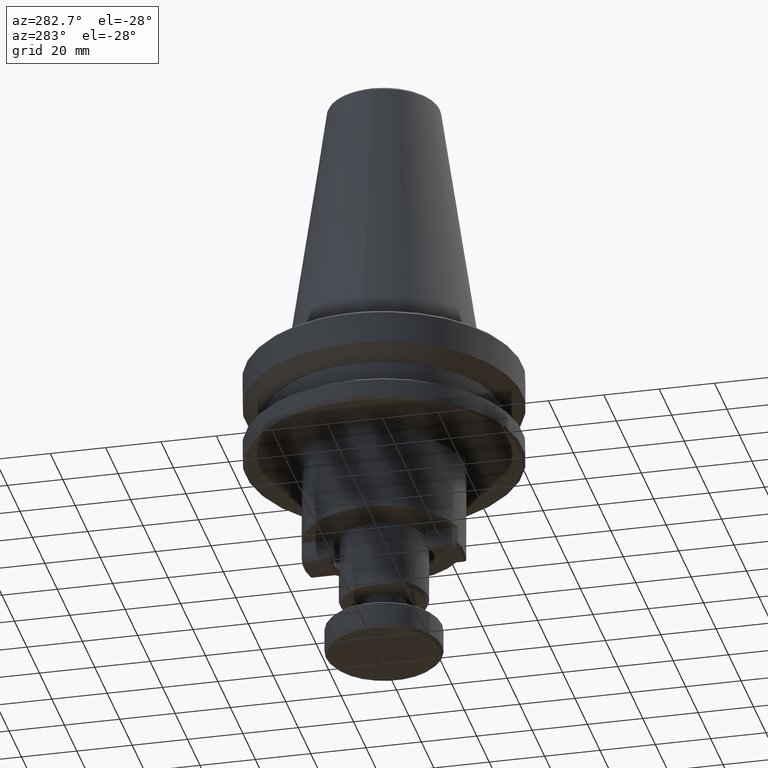
[diagram: clean part render]
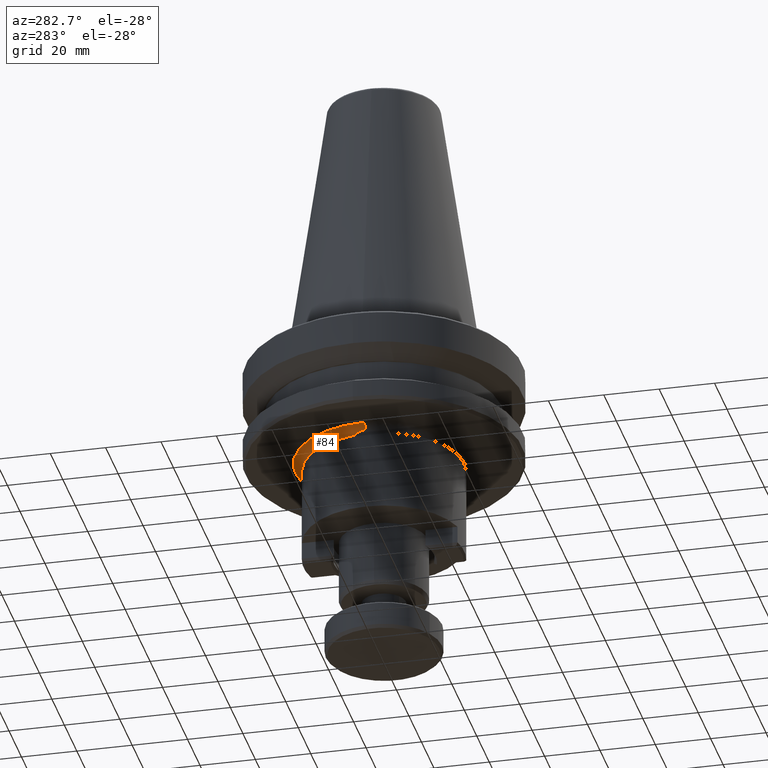
[diagram: same view with one face highlighted and labeled with its STEP entity id]
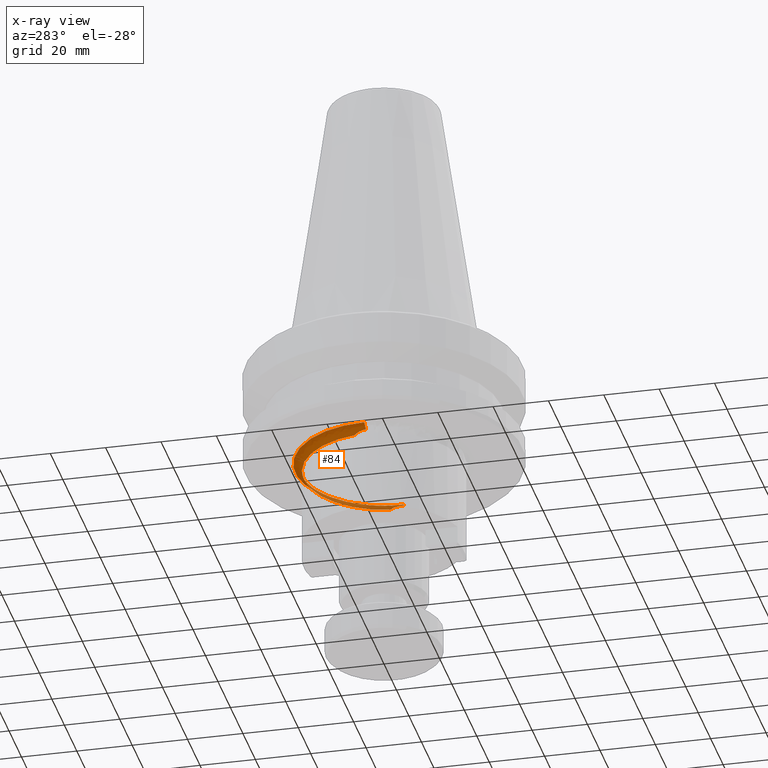
[diagram: x-ray of the same camera — body ghosted, the highlighted face saturated]
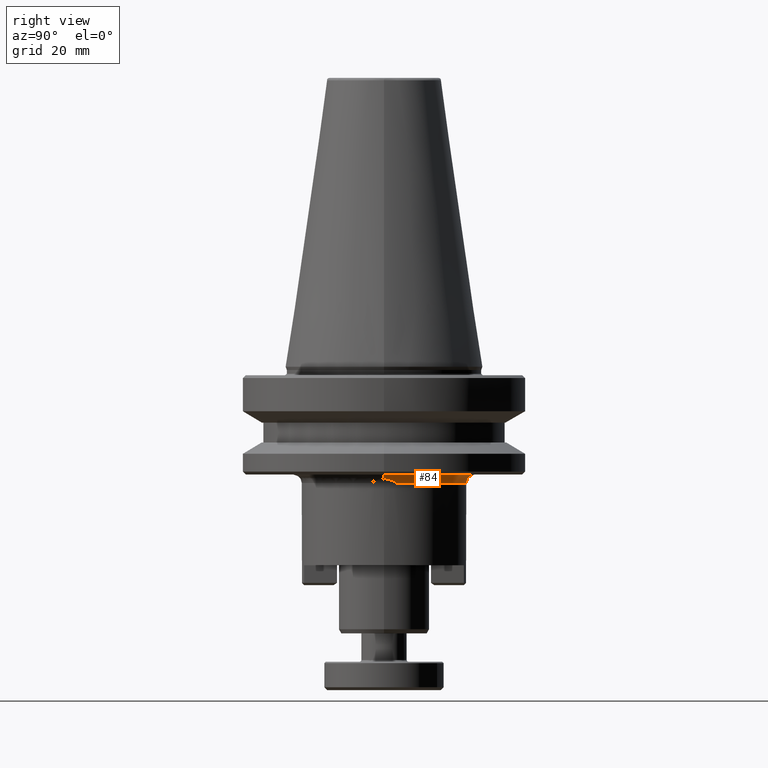
[diagram: same view with one face highlighted and labeled with its STEP entity id]
A machine part, auxiliary view. The second image highlights one B-rep face of the part: STEP entity #84.
The next image is the same camera in x-ray: the body ghosted, the highlighted face saturated — about 25% of this face is hidden behind the body in this view.
A second angle (right view) of the same face is appended — the face is thin or edge-on in the first view.
In plain terms, the highlighted face is a freeform B-spline surface patch.
Its self-contained STEP definition (entity closure, byte-faithful):
#65 = CARTESIAN_POINT ( 'NONE',  ( 29.37308693792537200, 0.7950259307638227700, -39.53439945254913100 ) ) ;
#84 = ADVANCED_FACE ( 'NONE', ( #1037 ), #342, .F. ) ;
#125 = ORIENTED_EDGE ( 'NONE', *, *, #1742, .F. ) ;
#126 = CARTESIAN_POINT ( 'NONE',  ( 29.27295225008198900, 1.562764795377848300, -39.66557073256570500 ) ) ;
#166 = CARTESIAN_POINT ( 'NONE',  ( -29.20160653221320900, 1.938896850791588200, -39.76280649701317300 ) ) ;
#244 = VERTEX_POINT ( 'NONE', #1927 ) ;
#263 = CARTESIAN_POINT ( 'NONE',  ( 30.93055105038361700, 0.0000000000000000000, -38.00000000060403900 ) ) ;
#342 =( BOUNDED_SURFACE ( )  B_SPLINE_SURFACE ( 3, 3, ( 
 ( #2304, #1856, #2701, #1745 ),
 ( #1761, #1816, #2589, #2180 ),
 ( #1201, #1610, #1801, #1909 ),
 ( #2657, #1949, #2121, #1861 ) ),
 .UNSPECIFIED., .F., .F., .F. ) 
 B_SPLINE_SURFACE_WITH_KNOTS ( ( 4, 4 ),
 ( 4, 4 ),
 ( 0.05789915400460531700, 0.9368585430000020400 ),
 ( 0.0000000000000000000, 1.000000000000000000 ),
 .UNSPECIFIED. ) 
 GEOMETRIC_REPRESENTATION_ITEM ( )  RATIONAL_B_SPLINE_SURFACE ( (
 ( 0.9599605786704300500, 0.3199868595568071100, 0.3199868595568071100, 0.9599605786704300500),
 ( 0.7698014946043482100, 0.2566004982014460400, 0.2566004982014460400, 0.7698014946043482100),
 ( 0.7686740691028690600, 0.2562246897009540800, 0.2562246897009540800, 0.7686740691028690600),
 ( 0.9565783021659940400, 0.3188594340553280200, 0.3188594340553280200, 0.9565783021659940400) ) ) 
 REPRESENTATION_ITEM ( '' )  SURFACE ( )  );
#408 = CARTESIAN_POINT ( 'NONE',  ( -29.96500746771830800, -1.151902097558945500E-007, -38.52471045805528100 ) ) ;
#409 = EDGE_CURVE ( 'NONE', #1400, #1647, #2175, .T. ) ;
#425 = VERTEX_POINT ( 'NONE', #1377 ) ;
#446 = CARTESIAN_POINT ( 'NONE',  ( -28.95551459557592700, 3.017730549902761800, -40.17220002150745000 ) ) ;
#455 = B_SPLINE_CURVE_WITH_KNOTS ( 'NONE', 3,
 ( #1643, #2905, #657, #2673, #2488, #1132, #126, #65, #1488, #1545 ),
 .UNSPECIFIED., .F., .F.,
 ( 4, 2, 2, 2, 4 ),
 ( 1.594428724920772600E-010, 0.001177310374208333600, 0.002354620588973794600, 0.003531930803739255200, 0.004709241018504715400 ),
 .UNSPECIFIED. ) ;
#500 = CARTESIAN_POINT ( 'NONE',  ( -30.93055105086838100, -1.189019114122236500E-007, -38.00000000060403900 ) ) ;
#541 = CARTESIAN_POINT ( 'NONE',  ( -31.99999999900000300, 63.99999999699999600, -38.00000000000000000 ) ) ;
#576 =( BOUNDED_CURVE ( )  B_SPLINE_CURVE ( 3, ( #838, #2444, #263, #1532 ),
 .UNSPECIFIED., .F., .T. ) 
 B_SPLINE_CURVE_WITH_KNOTS ( ( 4, 4 ),
 ( 0.0000000000000000000, 1.000000000000000000 ),
 .UNSPECIFIED. ) 
 CURVE ( )  GEOMETRIC_REPRESENTATION_ITEM ( )  RATIONAL_B_SPLINE_CURVE ( ( 0.8306423797577713300, 0.7915245138130843100, 0.8335031546158255800, 0.9565783021659950400 ) ) 
 REPRESENTATION_ITEM ( '' )  );
#657 = CARTESIAN_POINT ( 'NONE',  ( 28.79472452984956400, 3.696481166148045900, -40.54317938341570500 ) ) ;
#696 = CARTESIAN_POINT ( 'NONE',  ( -28.72179420253166200, 4.019597724626675200, -40.75552160706568100 ) ) ;
#838 = CARTESIAN_POINT ( 'NONE',  ( 29.40192378681016200, -4.286263797015736100E-016, -39.50000000047160100 ) ) ;
#878 = ORIENTED_EDGE ( 'NONE', *, *, #2761, .T. ) ;
#884 = CARTESIAN_POINT ( 'NONE',  ( -29.40192378833988200, -7.535041727427849300E-008, -39.49999999992881100 ) ) ;
#984 = CARTESIAN_POINT ( 'NONE',  ( 32.00000000184533600, 0.0000000000000000000, -38.00000000000000000 ) ) ;
#1037 = FACE_OUTER_BOUND ( 'NONE', #1203, .T. ) ;
#1127 = CARTESIAN_POINT ( 'NONE',  ( -29.40192378833988600, -7.535041727427849300E-008, -39.49999999992881100 ) ) ;
#1132 = CARTESIAN_POINT ( 'NONE',  ( 29.20204314615446300, 1.936843746364274700, -39.76212872075637300 ) ) ;
#1201 = CARTESIAN_POINT ( 'NONE',  ( 30.22951898499999900, 0.0000000000000000000, -38.00000000099999700 ) ) ;
#1203 = EDGE_LOOP ( 'NONE', ( #125, #2427, #2678, #2706, #878, #2274 ) ) ;
#1275 =( BOUNDED_CURVE ( )  B_SPLINE_CURVE ( 3, ( #2146, #541, #2360, #984 ),
 .UNSPECIFIED., .F., .T. ) 
 B_SPLINE_CURVE_WITH_KNOTS ( ( 4, 4 ),
 ( 0.0000000000000000000, 1.000000000000000000 ),
 .UNSPECIFIED. ) 
 CURVE ( )  GEOMETRIC_REPRESENTATION_ITEM ( )  RATIONAL_B_SPLINE_CURVE ( ( 0.9565783021659940400, 0.3188594340553280200, 0.3188594340553280200, 0.9565783021659940400 ) ) 
 REPRESENTATION_ITEM ( '' )  );
#1302 = EDGE_CURVE ( 'NONE', #425, #2197, #576, .T. ) ;
#1351 = EDGE_CURVE ( 'NONE', #244, #1693, #1876, .T. ) ;
#1377 = CARTESIAN_POINT ( 'NONE',  ( 29.40192378681016200, -4.286263797015736100E-016, -39.50000000047160100 ) ) ;
#1400 = VERTEX_POINT ( 'NONE', #2184 ) ;
#1417 = AXIS2_PLACEMENT_3D ( 'NONE', #2326, #1688, #2085 ) ;
#1488 = CARTESIAN_POINT ( 'NONE',  ( 29.40192378826442300, 0.3981437052248278900, -39.50000000000002100 ) ) ;
#1532 = CARTESIAN_POINT ( 'NONE',  ( 32.00000000184533600, 0.0000000000000000000, -38.00000000000000000 ) ) ;
#1545 = CARTESIAN_POINT ( 'NONE',  ( 29.40192378681016200, -4.286263797015736100E-016, -39.50000000047160100 ) ) ;
#1580 = CARTESIAN_POINT ( 'NONE',  ( -29.27378638425755100, 1.557903231813462200, -39.66443929533711800 ) ) ;
#1610 = CARTESIAN_POINT ( 'NONE',  ( 30.22951898500000600, 60.45903797099999400, -38.00000000099999700 ) ) ;
#1643 = CARTESIAN_POINT ( 'NONE',  ( 28.67490193647770300, 4.330126894148587100, -40.99999990176626600 ) ) ;
#1647 = VERTEX_POINT ( 'NONE', #2503 ) ;
#1688 = DIRECTION ( 'NONE',  ( -0.0000000000000000000, 0.0000000000000000000, -1.000000000000000000 ) ) ;
#1693 = VERTEX_POINT ( 'NONE', #2893 ) ;
#1742 = EDGE_CURVE ( 'NONE', #1647, #425, #455, .T. ) ;
#1745 = CARTESIAN_POINT ( 'NONE',  ( -29.00010761900000100, 0.0000000000000000000, -41.02541073300000800 ) ) ;
#1761 = CARTESIAN_POINT ( 'NONE',  ( 28.98513317599999100, 0.0000000000000000000, -39.25758612599999300 ) ) ;
#1801 = CARTESIAN_POINT ( 'NONE',  ( -30.22951898500000600, 60.45903797099999400, -38.00000000099999700 ) ) ;
#1816 = CARTESIAN_POINT ( 'NONE',  ( 28.98513317599999800, 57.97026635300000000, -39.25758612599999300 ) ) ;
#1820 = CARTESIAN_POINT ( 'NONE',  ( -29.04238225255937100, 2.668147252136054500, -40.01693841340249900 ) ) ;
#1856 = CARTESIAN_POINT ( 'NONE',  ( 29.00010761900000100, 58.00021523900000600, -41.02541073300000100 ) ) ;
#1861 = CARTESIAN_POINT ( 'NONE',  ( -31.99999999900000000, 0.0000000000000000000, -37.99999999999998600 ) ) ;
#1876 =( BOUNDED_CURVE ( )  B_SPLINE_CURVE ( 3, ( #1898, #500, #408, #884 ),
 .UNSPECIFIED., .F., .T. ) 
 B_SPLINE_CURVE_WITH_KNOTS ( ( 4, 4 ),
 ( 0.0000000000000000000, 1.000000000000000000 ),
 .UNSPECIFIED. ) 
 CURVE ( )  GEOMETRIC_REPRESENTATION_ITEM ( )  RATIONAL_B_SPLINE_CURVE ( ( 0.9565782984887575300, 0.8335031514603181700, 0.7915245108034995000, 0.8306423765183016400 ) ) 
 REPRESENTATION_ITEM ( '' )  );
#1898 = CARTESIAN_POINT ( 'NONE',  ( -32.00000000184532900, -2.050217360986863200E-008, -37.99999999999999300 ) ) ;
#1909 = CARTESIAN_POINT ( 'NONE',  ( -30.22951898499999900, 0.0000000000000000000, -38.00000000099999700 ) ) ;
#1927 = CARTESIAN_POINT ( 'NONE',  ( -32.00000000184532900, -2.050217360986863200E-008, -37.99999999999999300 ) ) ;
#1949 = CARTESIAN_POINT ( 'NONE',  ( 31.99999999900000000, 63.99999999699999600, -38.00000000000000000 ) ) ;
#2063 = CARTESIAN_POINT ( 'NONE',  ( -28.79564640567209800, 3.692439676530776100, -40.54066786671460000 ) ) ;
#2085 = DIRECTION ( 'NONE',  ( -1.000000000000000000, 0.0000000000000000000, 0.0000000000000000000 ) ) ;
#2121 = CARTESIAN_POINT ( 'NONE',  ( -31.99999999900000000, 63.99999999699999600, -38.00000000000000000 ) ) ;
#2146 = CARTESIAN_POINT ( 'NONE',  ( -32.00000000184532900, -2.050217360986863200E-008, -37.99999999999999300 ) ) ;
#2156 = CARTESIAN_POINT ( 'NONE',  ( 32.00000000184533600, 0.0000000000000000000, -38.00000000000000000 ) ) ;
#2175 = CIRCLE ( 'NONE', #1417, 28.99999999951868200 ) ;
#2180 = CARTESIAN_POINT ( 'NONE',  ( -28.98513317599999100, 0.0000000000000000000, -39.25758612599999300 ) ) ;
#2184 = CARTESIAN_POINT ( 'NONE',  ( -28.67490195554199400, 4.330126767938637000, -40.99999980240170300 ) ) ;
#2197 = VERTEX_POINT ( 'NONE', #2156 ) ;
#2274 = ORIENTED_EDGE ( 'NONE', *, *, #1302, .F. ) ;
#2277 = CARTESIAN_POINT ( 'NONE',  ( -28.67490195554199400, 4.330126767938637000, -40.99999980240170300 ) ) ;
#2304 = CARTESIAN_POINT ( 'NONE',  ( 29.00010761900000100, 0.0000000000000000000, -41.02541073300000800 ) ) ;
#2326 = CARTESIAN_POINT ( 'NONE',  ( 0.0000000000000000000, 0.0000000000000000000, -40.99999980240171000 ) ) ;
#2344 = B_SPLINE_CURVE_WITH_KNOTS ( 'NONE', 3,
 ( #1127, #2471, #2857, #1580, #166, #1820, #446, #2063, #696, #2277 ),
 .UNSPECIFIED., .F., .F.,
 ( 4, 2, 2, 2, 4 ),
 ( 0.0000000000000000000, 0.001178016275081170300, 0.002356032550162340300, 0.003534048825243510400, 0.004712065100324680500 ),
 .UNSPECIFIED. ) ;
#2360 = CARTESIAN_POINT ( 'NONE',  ( 31.99999999900000300, 63.99999999699999600, -38.00000000000000000 ) ) ;
#2427 = ORIENTED_EDGE ( 'NONE', *, *, #409, .F. ) ;
#2444 = CARTESIAN_POINT ( 'NONE',  ( 29.96500746691516100, 0.0000000000000000000, -38.52471045849174700 ) ) ;
#2471 = CARTESIAN_POINT ( 'NONE',  ( -29.40192379074063600, 0.3984390461644854400, -39.49999999571106500 ) ) ;
#2488 = CARTESIAN_POINT ( 'NONE',  ( 29.04221046992738700, 2.668987335446161100, -40.01719353391491300 ) ) ;
#2503 = CARTESIAN_POINT ( 'NONE',  ( 28.67490193647770300, 4.330126894148587100, -40.99999990176626600 ) ) ;
#2570 = EDGE_CURVE ( 'NONE', #1693, #1400, #2344, .T. ) ;
#2589 = CARTESIAN_POINT ( 'NONE',  ( -28.98513317599999800, 57.97026635300000000, -39.25758612599999300 ) ) ;
#2657 = CARTESIAN_POINT ( 'NONE',  ( 31.99999999900000000, 0.0000000000000000000, -37.99999999999998600 ) ) ;
#2673 = CARTESIAN_POINT ( 'NONE',  ( 28.95442599526629500, 3.022175972378066300, -40.17432712971722700 ) ) ;
#2678 = ORIENTED_EDGE ( 'NONE', *, *, #2570, .F. ) ;
#2701 = CARTESIAN_POINT ( 'NONE',  ( -29.00010761900000100, 58.00021523900000600, -41.02541073300000100 ) ) ;
#2706 = ORIENTED_EDGE ( 'NONE', *, *, #1351, .F. ) ;
#2761 = EDGE_CURVE ( 'NONE', #244, #2197, #1275, .T. ) ;
#2857 = CARTESIAN_POINT ( 'NONE',  ( -29.37362876771421900, 0.7893166574279718600, -39.53372898595434000 ) ) ;
#2893 = CARTESIAN_POINT ( 'NONE',  ( -29.40192378833988600, -7.535041727427849300E-008, -39.49999999992881100 ) ) ;
#2905 = CARTESIAN_POINT ( 'NONE',  ( 28.72180762754585400, 4.019508731760262200, -40.75545152027055500 ) ) ;